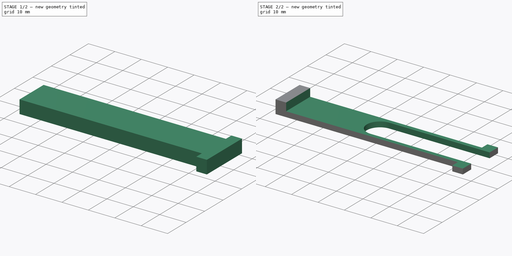
[diagram: build sequence overview — one tinted view per stage of 2, left to right]
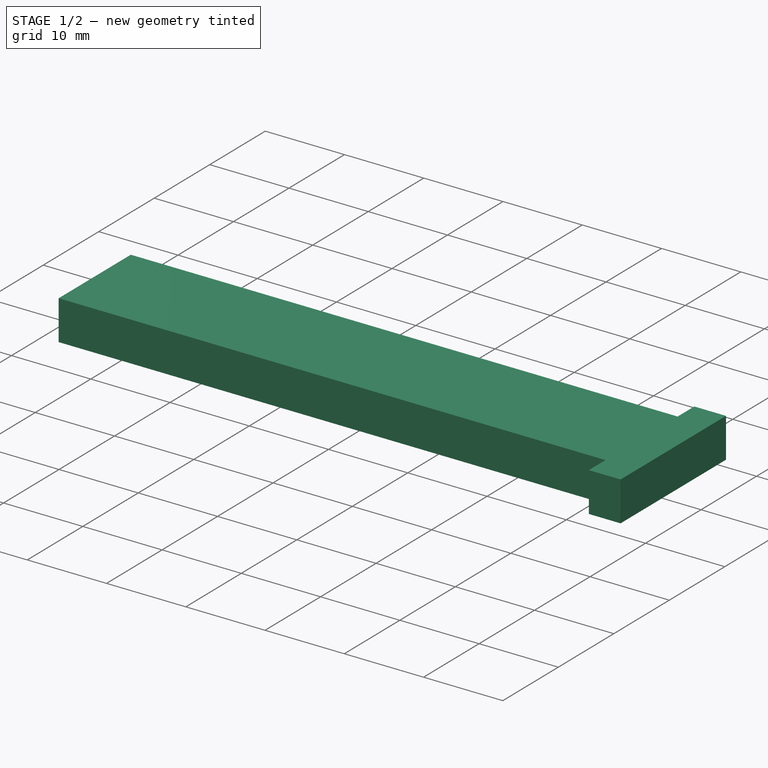
[diagram: stage 1 of 2 — iso view after this stage's code; geometry added in this stage tinted green]
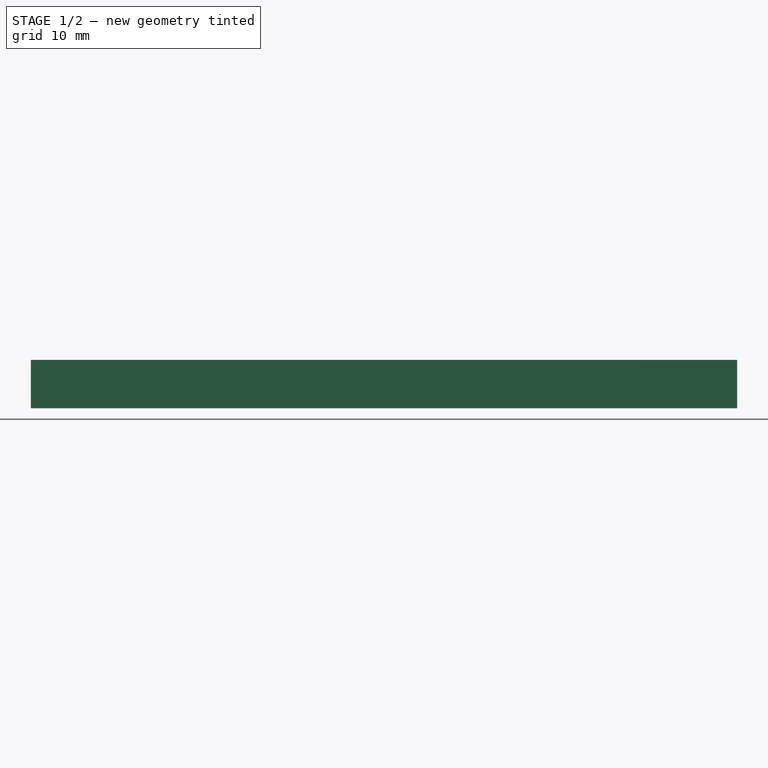
[diagram: stage 1 of 2 — front view after this stage's code; geometry added in this stage tinted green]
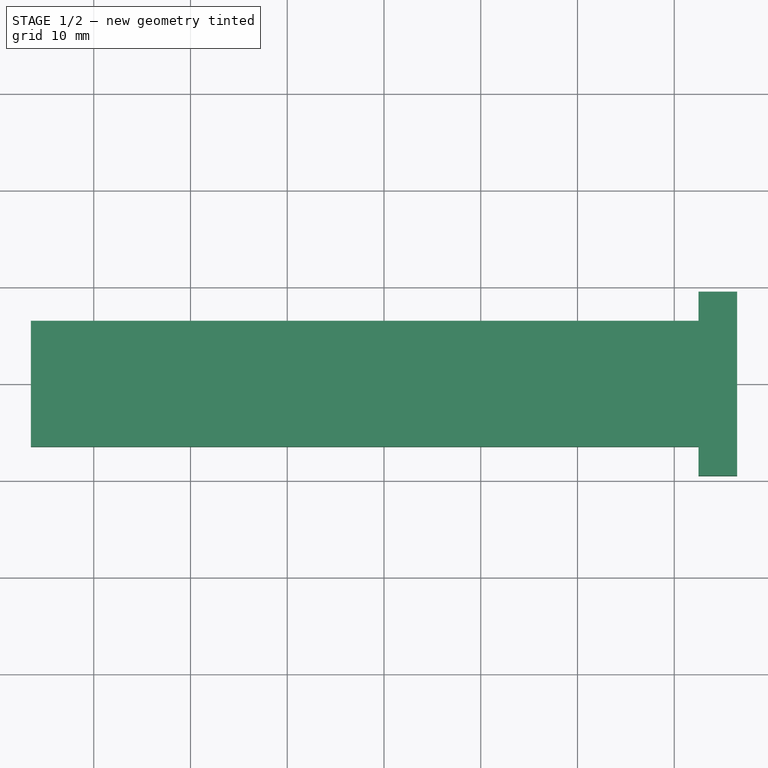
[diagram: stage 1 of 2 — top view after this stage's code; geometry added in this stage tinted green]
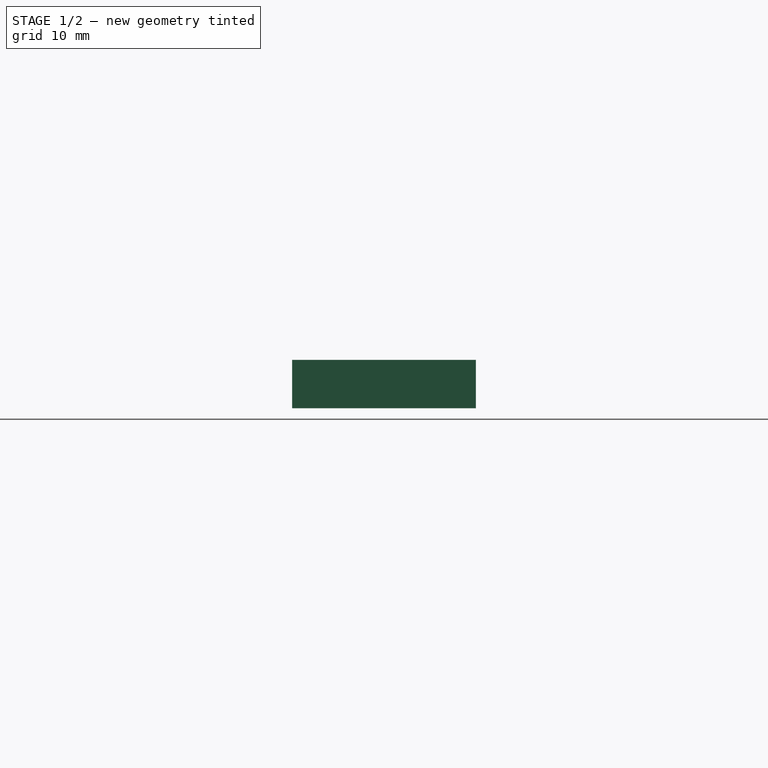
[diagram: stage 1 of 2 — right view after this stage's code; geometry added in this stage tinted green]
FCSTD DOCUMENT  (FreeCAD 0.14R3702 (Git))
Label: battery-pack-clip
License: CC-BY 3.0
LicenseURL: http://creativecommons.org/licenses/by/3.0/
objects: Sketcher::SketchObject×4, PartDesign::Pocket×3, PartDesign::Pad×1
note: 12 computed .brp shape members not serialized (recipe doc carries the construction recipe); baked Part::Feature solids carry a one-line shape summary decoded from their .brp

FEATURE [Sketcher::SketchObject] Sketch  label="main-body-sketch"
  sketch-geometry (4):
    g0: LineSegment StartX=-36.5 StartY=9.5 StartZ=0 EndX=36.5 EndY=9.5 EndZ=0
    g1: LineSegment StartX=36.5 StartY=9.5 StartZ=0 EndX=36.5 EndY=-9.5 EndZ=0
    g2: LineSegment StartX=36.5 StartY=-9.5 StartZ=0 EndX=-36.5 EndY=-9.5 EndZ=0
    g3: LineSegment StartX=-36.5 StartY=-9.5 StartZ=0 EndX=-36.5 EndY=9.5 EndZ=0
  constraints (11):
    c: Coincident(g0,g1)
    c: Coincident(g1,g2)
    c: Coincident(g2,g3)
    c: Coincident(g3,g0)
    c: Horizontal(g0)
    c: Horizontal(g2)
    c: Vertical(g1)
    c: Vertical(g3)
    c: Symmetric(g0,g1,g-1)
    c: DistanceX(g0) = 73
    c: DistanceY(g3) = 19
FEATURE [PartDesign::Pad] Pad  label="main-body"
  Length = 5
  Length2 = 100
  Sketch = -> Sketch
  Type = 0
FEATURE [Sketcher::SketchObject] Sketch001  label="cutout-1-sketch"
  ExternalGeometry = -> [Pad]
  Placement = pos=(0,0,5) rot=(0,0,1;0rad)
  Support = -> Pad [Face6]
  sketch-geometry (8):
    g0: LineSegment StartX=-36.5 StartY=9.5 StartZ=0 EndX=32.5 EndY=9.5 EndZ=0
    g1: LineSegment StartX=32.5 StartY=9.5 StartZ=0 EndX=32.5 EndY=6.5 EndZ=0
    g2: LineSegment StartX=32.5 StartY=6.5 StartZ=0 EndX=-36.5 EndY=6.5 EndZ=0
    g3: LineSegment StartX=-36.5 StartY=6.5 StartZ=0 EndX=-36.5 EndY=9.5 EndZ=0
    g4: LineSegment StartX=-36.5 StartY=-6.5 StartZ=0 EndX=32.5 EndY=-6.5 EndZ=0
    g5: LineSegment StartX=32.5 StartY=-6.5 StartZ=0 EndX=32.5 EndY=-9.5 EndZ=0
    g6: LineSegment StartX=32.5 StartY=-9.5 StartZ=0 EndX=-36.5 EndY=-9.5 EndZ=0
    g7: LineSegment StartX=-36.5 StartY=-9.5 StartZ=0 EndX=-36.5 EndY=-6.5 EndZ=0
  constraints (22):
    c: Coincident(g0,g1)
    c: Coincident(g1,g2)
    c: Coincident(g2,g3)
    c: Coincident(g3,g0)
    c: Horizontal(g0)
    c: Horizontal(g2)
    c: Vertical(g1)
    c: Vertical(g3)
    c: Coincident(g0,g-3)
    c: DistanceX(g2) = -69
    c: DistanceY(g3) = 3
    c: Coincident(g4,g5)
    c: Coincident(g5,g6)
    c: Coincident(g6,g7)
    c: Coincident(g7,g4)
    c: Horizontal(g4)
    c: Horizontal(g6)
    c: Vertical(g5)
    c: Vertical(g7)
    c: Symmetric(g4,g2,g-1)
    c: Symmetric(g0,g6,g-1)
    c: Symmetric(g4,g1,g-1)
FEATURE [PartDesign::Pocket] Pocket  label="cutout-1"
  Length = 5
  Sketch = -> Sketch001
  Type = 1
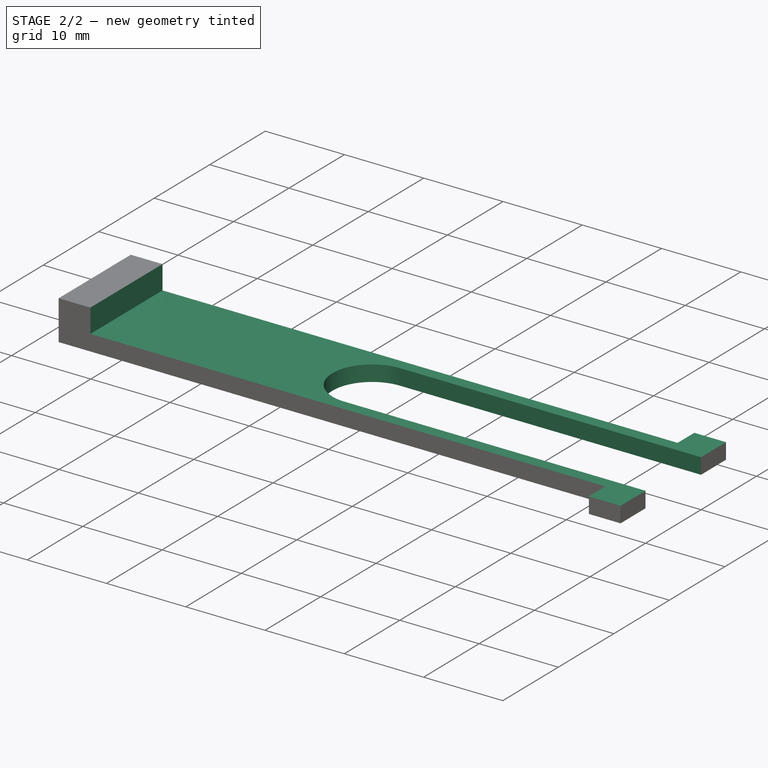
[diagram: stage 2 of 2 — iso view after this stage's code; geometry added in this stage tinted green]
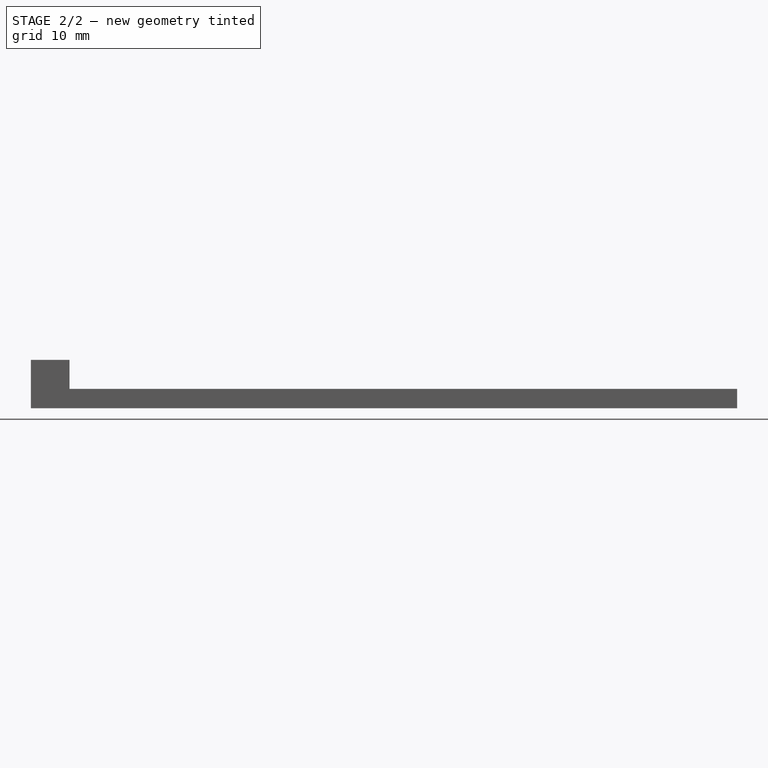
[diagram: stage 2 of 2 — front view after this stage's code; geometry added in this stage tinted green]
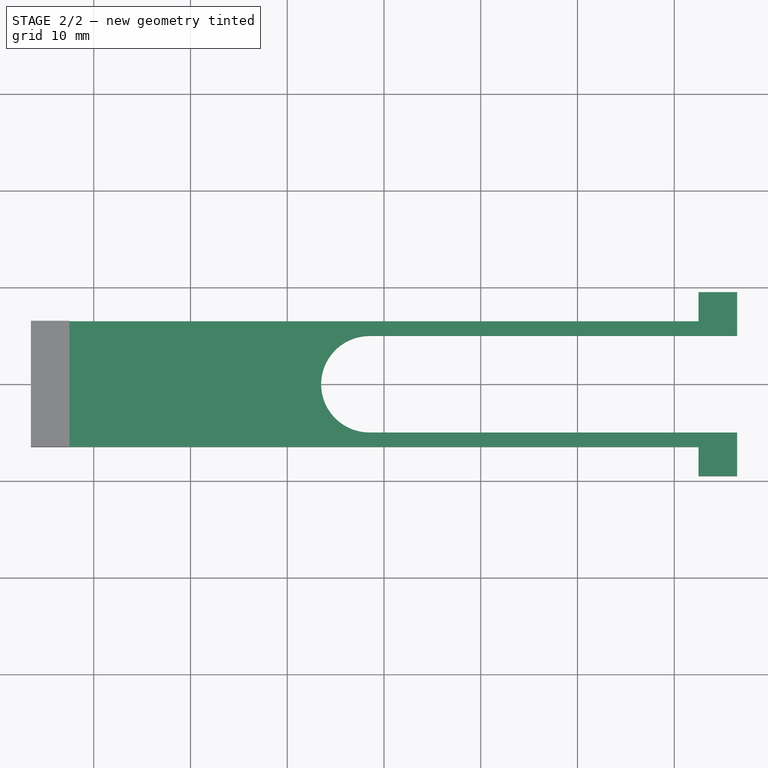
[diagram: stage 2 of 2 — top view after this stage's code; geometry added in this stage tinted green]
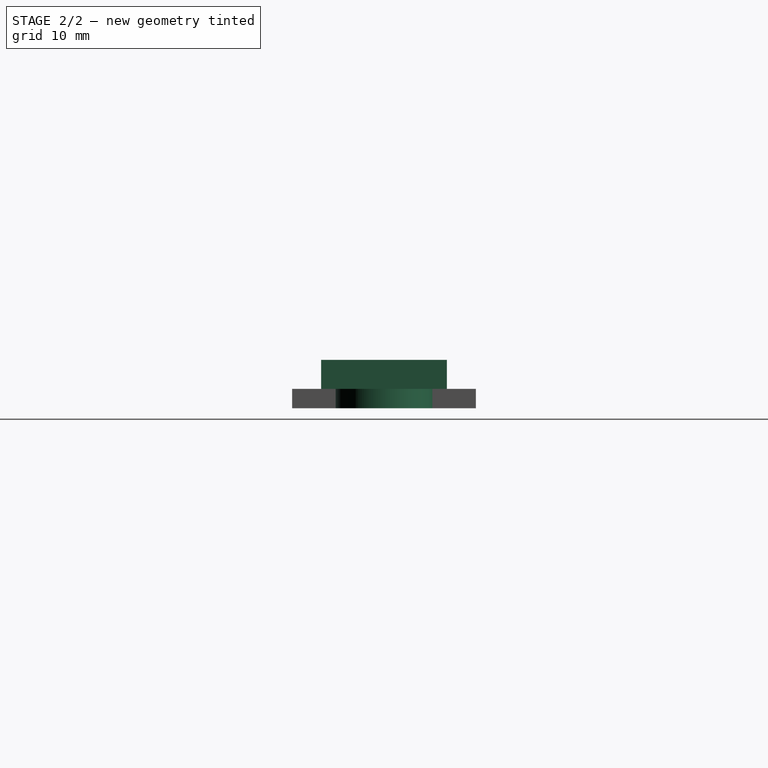
[diagram: stage 2 of 2 — right view after this stage's code; geometry added in this stage tinted green]
FEATURE [Sketcher::SketchObject] Sketch002  label="cutout-2-sketch"
  ExternalGeometry = -> [Pocket]
  Placement = pos=(0,-9.5,0) rot=(1,0,0;1.5708rad)
  Support = -> Pocket [Face7]
  sketch-geometry (5):
    g0: LineSegment StartX=-36.5 StartY=5 StartZ=0 EndX=32.5 EndY=5 EndZ=0
    g1: LineSegment StartX=36.5 StartY=5 StartZ=0 EndX=36.5 EndY=2 EndZ=0
    g2: LineSegment StartX=36.5 StartY=5 StartZ=0 EndX=-32.5 EndY=5 EndZ=0
    g3: LineSegment StartX=-32.5 StartY=5 StartZ=0 EndX=-32.5 EndY=2 EndZ=0
    g4: LineSegment StartX=-32.5 StartY=2 StartZ=0 EndX=36.5 EndY=2 EndZ=0
  constraints (14):
    c: Horizontal(g0)
    c: Horizontal(g2)
    c: Vertical(g1)
    c: DistanceY(g-1,g1) = 2
    c: Coincident(g0,g-4)
    c: Coincident(g2,g1)
    c: DistanceX(g2) = -69
    c: Coincident(g3,g4)
    c: Vertical(g3)
    c: Horizontal(g4)
    c: Coincident(g3,g2)
    c: Coincident(g4,g1)
    c: PointOnObject(g1,g-3)
    c: Coincident(g1,g-3)
FEATURE [PartDesign::Pocket] Pocket001  label="cutout-2"
  Length = 5
  Sketch = -> Sketch002
  Type = 1
FEATURE [Sketcher::SketchObject] Sketch003  label="cutout-3-sketch"
  ExternalGeometry = -> [Pocket001]
  Placement = pos=(0,0,2) rot=(0,0,1;0rad)
  Support = -> Pocket001 [Face5]
  sketch-geometry (5):
    g0: LineSegment StartX=-1.5 StartY=5 StartZ=0 EndX=36.5 EndY=5 EndZ=0
    g1: LineSegment StartX=36.5 StartY=5 StartZ=0 EndX=36.5 EndY=-5 EndZ=0
    g2: LineSegment StartX=36.5 StartY=-5 StartZ=0 EndX=-1.5 EndY=-5 EndZ=0
    g3: LineSegment [constr] StartX=-1.5 StartY=-5 StartZ=0 EndX=-1.5 EndY=5 EndZ=0
    g4: ArcOfCircle CenterX=-1.5 CenterY=0 CenterZ=0 NormalX=0 NormalY=0 NormalZ=1 Radius=5 StartAngle=1.5708 EndAngle=4.71239
  constraints (15):
    c: Coincident(g0,g1)
    c: Coincident(g1,g2)
    c: Coincident(g2,g3)
    c: Coincident(g3,g0)
    c: Horizontal(g0)
    c: Horizontal(g2)
    c: Vertical(g1)
    c: Vertical(g3)
    c: Symmetric(g0,g1,g-1)
    c: PointOnObject(g0,g-3)
    c: DistanceY(g1,g0) = 10
    c: DistanceX(g0) = 38
    c: Coincident(g4,g0)
    c: Coincident(g4,g2)
    c: PointOnObject(g4,g3)
FEATURE [PartDesign::Pocket] Pocket002  label="cutout-3"
  Length = 5
  Sketch = -> Sketch003
  Type = 1
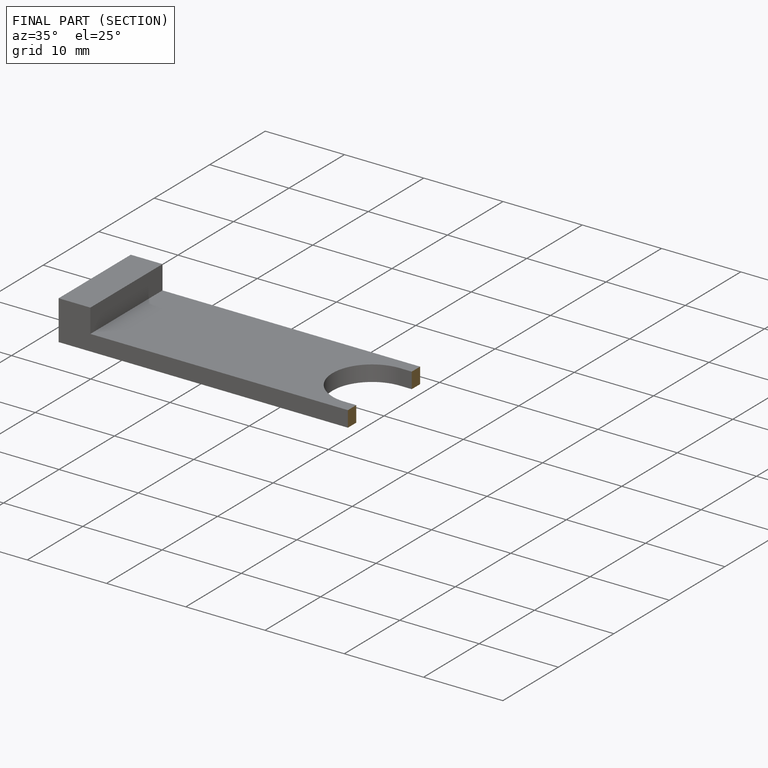
[diagram: finished part — half-section view (interior)]
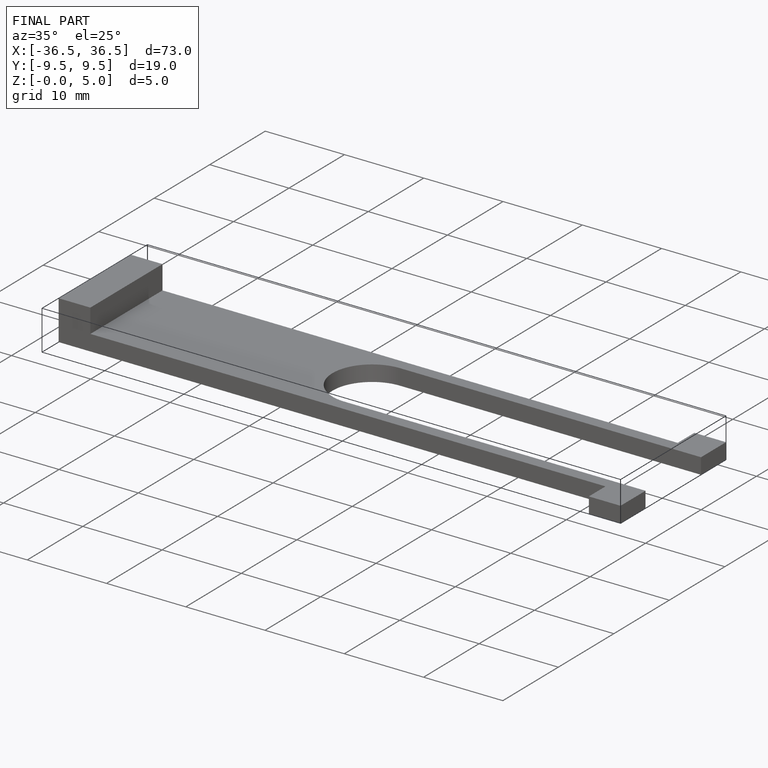
[diagram: finished part — iso view with bounding-box wireframe]
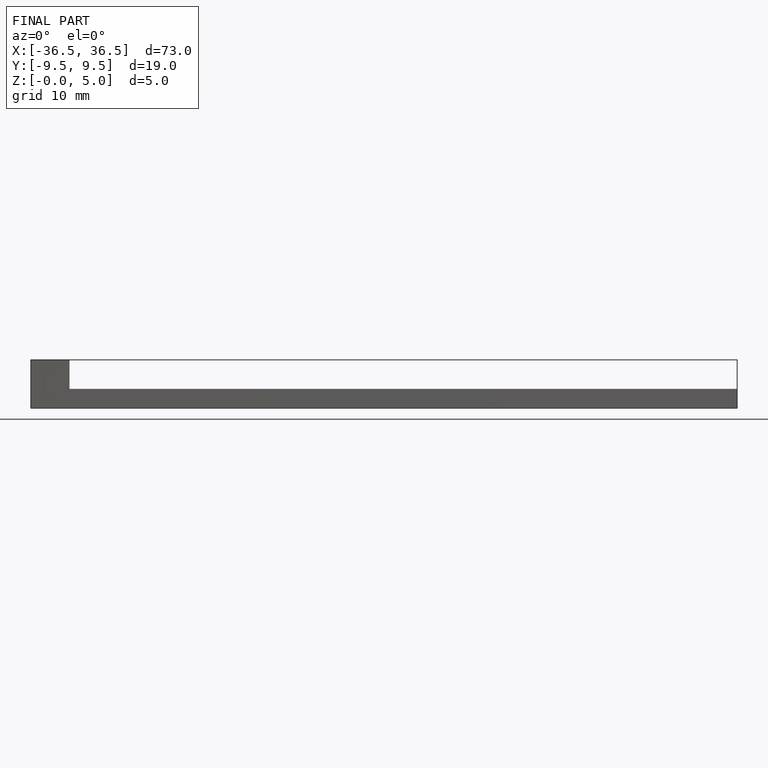
[diagram: finished part — front view with bounding-box wireframe]
